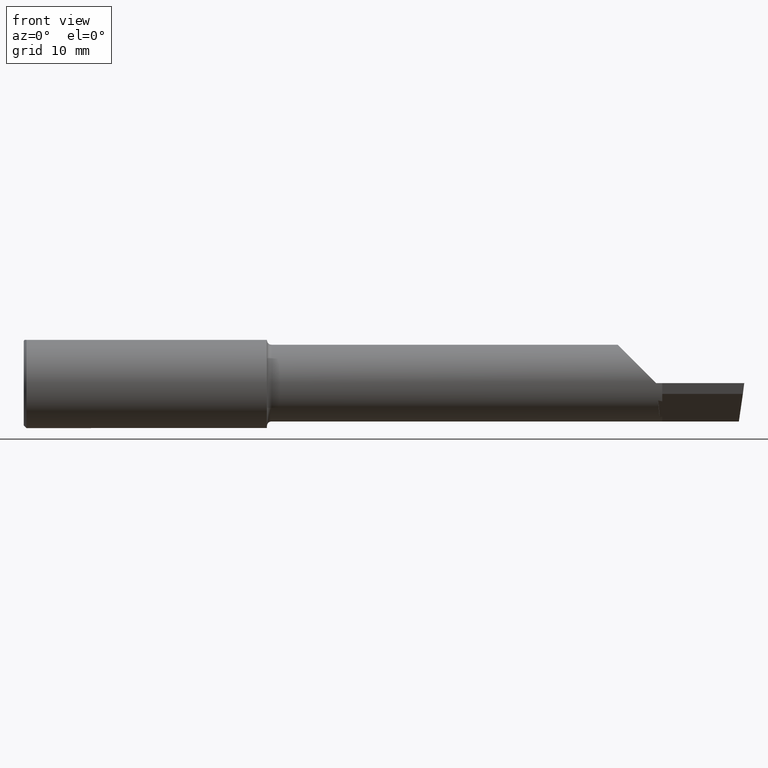
[diagram: clean part render]
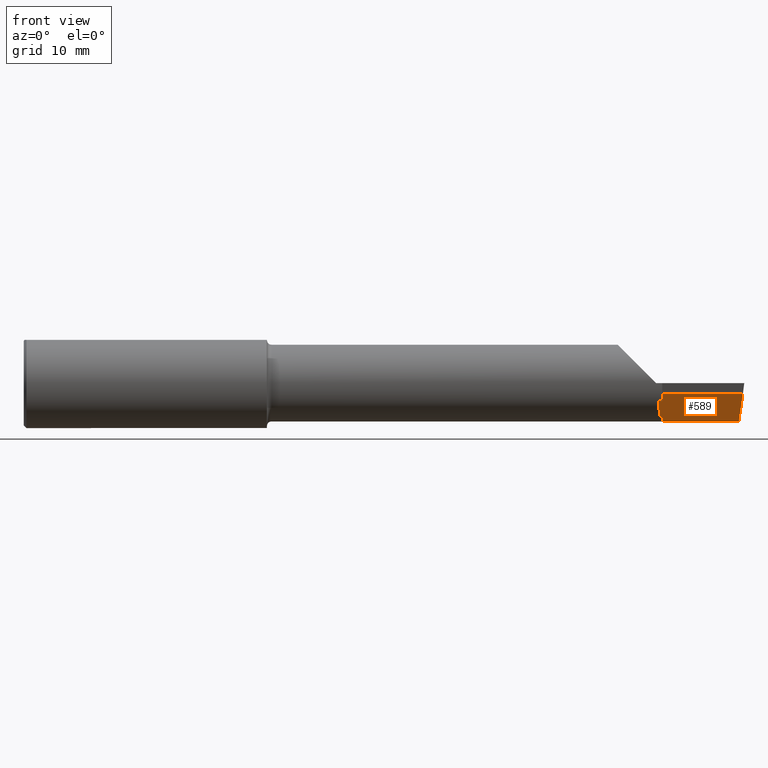
[diagram: same view with one face highlighted and labeled with its STEP entity id]
A machine part, front view. The second image highlights one B-rep face of the part: STEP entity #589.
In plain terms, the highlighted planar face has unit normal (0.0684, 0.71, 0.7009).
Its self-contained STEP definition (entity closure, byte-faithful):
#17 = VECTOR ( 'NONE', #681, 39.37007874015748143 ) ;
#19 = VECTOR ( 'NONE', #659, 39.37007874015748143 ) ;
#21 = EDGE_CURVE ( 'NONE', #478, #242, #550, .T. ) ;
#27 = VERTEX_POINT ( 'NONE', #97 ) ;
#33 = LINE ( 'NONE', #273, #17 ) ;
#44 = DIRECTION ( 'NONE',  ( 0.000000000000000000, -0.7025528302622683352, 0.7116315905652843554 ) ) ;
#53 = CARTESIAN_POINT ( 'NONE',  ( 3.531082512009719565, -0.04783050615766638175, -0.1877927888072085660 ) ) ;
#66 = EDGE_CURVE ( 'NONE', #27, #249, #33, .T. ) ;
#72 = DIRECTION ( 'NONE',  ( 0.9953961983671787417, -0.09584575252022421721, -0.000000000000000000 ) ) ;
#75 = CARTESIAN_POINT ( 'NONE',  ( 3.522499172395930245, -0.1369718963205480700, -0.09666230448512481976 ) ) ;
#90 = VECTOR ( 'NONE', #500, 39.37007874015748143 ) ;
#97 = CARTESIAN_POINT ( 'NONE',  ( 3.992367153641839472, -0.2184096159518785774, -0.06000000000000012268 ) ) ;
#114 = CARTESIAN_POINT ( 'NONE',  ( 3.531082512009719565, -0.04783050615766638175, -0.1877927888072085660 ) ) ;
#129 = CARTESIAN_POINT ( 'NONE',  ( 3.519046046773248282, -0.1728339770796963881, -0.06000000000000012962 ) ) ;
#133 = LINE ( 'NONE', #420, #19 ) ;
#147 = CARTESIAN_POINT ( 'NONE',  ( 3.544999999999999929, -0.2196470971618798007, -0.01511331185988431559 ) ) ;
#170 = CARTESIAN_POINT ( 'NONE',  ( 3.540481425188584996, -0.04977693083852388622, -0.1867379188486351094 ) ) ;
#178 = ORIENTED_EDGE ( 'NONE', *, *, #487, .F. ) ;
#199 = CARTESIAN_POINT ( 'NONE',  ( 3.519046046773248282, -0.1728339770796963881, -0.06000000000000012962 ) ) ;
#203 = CARTESIAN_POINT ( 'NONE',  ( 3.988460977461673274, -0.06683733097719073146, -0.2131499999999999506 ) ) ;
#242 = VERTEX_POINT ( 'NONE', #336 ) ;
#249 = VERTEX_POINT ( 'NONE', #512 ) ;
#256 = ORIENTED_EDGE ( 'NONE', *, *, #66, .F. ) ;
#258 = VECTOR ( 'NONE', #72, 39.37007874015748143 ) ;
#271 = CARTESIAN_POINT ( 'NONE',  ( 3.544999999999999929, -0.02413689554465599241, -0.2131499999999999506 ) ) ;
#273 = CARTESIAN_POINT ( 'NONE',  ( 3.984159346317754036, -0.1618214701366293695, -0.1165188729350217778 ) ) ;
#282 = LINE ( 'NONE', #632, #618 ) ;
#283 = VERTEX_POINT ( 'NONE', #114 ) ;
#307 = CARTESIAN_POINT ( 'NONE',  ( 3.537805100486889565, -0.1353538176560922790, -0.09979413120600018339 ) ) ;
#310 = VERTEX_POINT ( 'NONE', #568 ) ;
#315 =( BOUNDED_CURVE ( )  B_SPLINE_CURVE ( 3, ( #449, #170, #689, #53 ),
 .UNSPECIFIED., .F., .T. ) 
 B_SPLINE_CURVE_WITH_KNOTS ( ( 4, 4 ),
 ( 3.425081864342414573, 3.440661644967335508 ),
 .UNSPECIFIED. ) 
 CURVE ( )  GEOMETRIC_REPRESENTATION_ITEM ( )  RATIONAL_B_SPLINE_CURVE ( ( 1.000000000000000000, 0.9999797726385939445, 0.9999797726385939445, 1.000000000000000000 ) ) 
 REPRESENTATION_ITEM ( '' )  );
#319 = EDGE_CURVE ( 'NONE', #283, #310, #282, .T. ) ;
#336 = CARTESIAN_POINT ( 'NONE',  ( 3.544999999999999929, -0.05074392122494208318, -0.1861991442216451575 ) ) ;
#358 = CARTESIAN_POINT ( 'NONE',  ( 3.545000000000000373, -0.1345157694617465094, -0.1013447517297721423 ) ) ;
#377 = PLANE ( 'NONE',  #385 ) ;
#385 = AXIS2_PLACEMENT_3D ( 'NONE', #199, #426, #665 ) ;
#389 =( BOUNDED_CURVE ( )  B_SPLINE_CURVE ( 3, ( #75, #709, #307, #358 ),
 .UNSPECIFIED., .F., .F. ) 
 B_SPLINE_CURVE_WITH_KNOTS ( ( 4, 4 ),
 ( 2.833296237007179919, 2.858103442837171215 ),
 .UNSPECIFIED. ) 
 CURVE ( )  GEOMETRIC_REPRESENTATION_ITEM ( )  RATIONAL_B_SPLINE_CURVE ( ( 1.000000000000000000, 0.9999487175357286706, 0.9999487175357286706, 1.000000000000000000 ) ) 
 REPRESENTATION_ITEM ( '' )  );
#400 = ORIENTED_EDGE ( 'NONE', *, *, #21, .F. ) ;
#420 = CARTESIAN_POINT ( 'NONE',  ( 3.544999999999999929, -0.2196470971618798007, -0.01511331185988431559 ) ) ;
#421 = ORIENTED_EDGE ( 'NONE', *, *, #458, .F. ) ;
#425 = EDGE_CURVE ( 'NONE', #565, #528, #133, .T. ) ;
#426 = DIRECTION ( 'NONE',  ( 0.06836202603457078308, 0.7099667855717584075, 0.7009092642998475675 ) ) ;
#436 = CARTESIAN_POINT ( 'NONE',  ( 3.544999999999999929, -0.1753330585328637670, -0.06000000000000013656 ) ) ;
#449 = CARTESIAN_POINT ( 'NONE',  ( 3.544999999999999929, -0.05074392122494208318, -0.1861991442216451575 ) ) ;
#458 = EDGE_CURVE ( 'NONE', #528, #27, #649, .T. ) ;
#473 = VECTOR ( 'NONE', #44, 39.37007874015748143 ) ;
#478 = VERTEX_POINT ( 'NONE', #271 ) ;
#480 = ORIENTED_EDGE ( 'NONE', *, *, #319, .F. ) ;
#487 = EDGE_CURVE ( 'NONE', #249, #478, #489, .T. ) ;
#489 = LINE ( 'NONE', #203, #90 ) ;
#500 = DIRECTION ( 'NONE',  ( -0.9953961983671787417, 0.09584575252022425884, -2.614745597736306358E-17 ) ) ;
#512 = CARTESIAN_POINT ( 'NONE',  ( 3.970126340504450457, -0.06507190623553232856, -0.2131499999999999506 ) ) ;
#516 = DIRECTION ( 'NONE',  ( -0.06717917588521545025, -0.6976824170844043715, 0.7132504491541848957 ) ) ;
#528 = VERTEX_POINT ( 'NONE', #436 ) ;
#550 = LINE ( 'NONE', #147, #473 ) ;
#551 = ORIENTED_EDGE ( 'NONE', *, *, #744, .F. ) ;
#565 = VERTEX_POINT ( 'NONE', #673 ) ;
#568 = CARTESIAN_POINT ( 'NONE',  ( 3.522499172395930245, -0.1369718963205480700, -0.09666230448512481976 ) ) ;
#583 = ORIENTED_EDGE ( 'NONE', *, *, #719, .F. ) ;
#589 = ADVANCED_FACE ( 'NONE', ( #727 ), #377, .F. ) ;
#618 = VECTOR ( 'NONE', #516, 39.37007874015748143 ) ;
#632 = CARTESIAN_POINT ( 'NONE',  ( 3.519046046773248282, -0.1728339770796963881, -0.06000000000000012962 ) ) ;
#649 = LINE ( 'NONE', #129, #258 ) ;
#659 = DIRECTION ( 'NONE',  ( 0.000000000000000000, -0.7025528302622683352, 0.7116315905652843554 ) ) ;
#665 = DIRECTION ( 'NONE',  ( 0.000000000000000000, -0.7025528302622683352, 0.7116315905652843554 ) ) ;
#673 = CARTESIAN_POINT ( 'NONE',  ( 3.545000000000000373, -0.1345157694617465094, -0.1013447517297721423 ) ) ;
#679 = EDGE_LOOP ( 'NONE', ( #256, #421, #751, #551, #480, #583, #400, #178 ) ) ;
#681 = DIRECTION ( 'NONE',  ( -0.1020886612874989108, 0.7038430390621324140, -0.7029814233678639557 ) ) ;
#689 = CARTESIAN_POINT ( 'NONE',  ( 3.535842168685240594, -0.04880577283880147693, -0.1872691444557819385 ) ) ;
#709 = CARTESIAN_POINT ( 'NONE',  ( 3.530304439966510444, -0.1361725685965919641, -0.09823323541120156099 ) ) ;
#719 = EDGE_CURVE ( 'NONE', #242, #283, #315, .T. ) ;
#727 = FACE_OUTER_BOUND ( 'NONE', #679, .T. ) ;
#744 = EDGE_CURVE ( 'NONE', #310, #565, #389, .T. ) ;
#751 = ORIENTED_EDGE ( 'NONE', *, *, #425, .F. ) ;